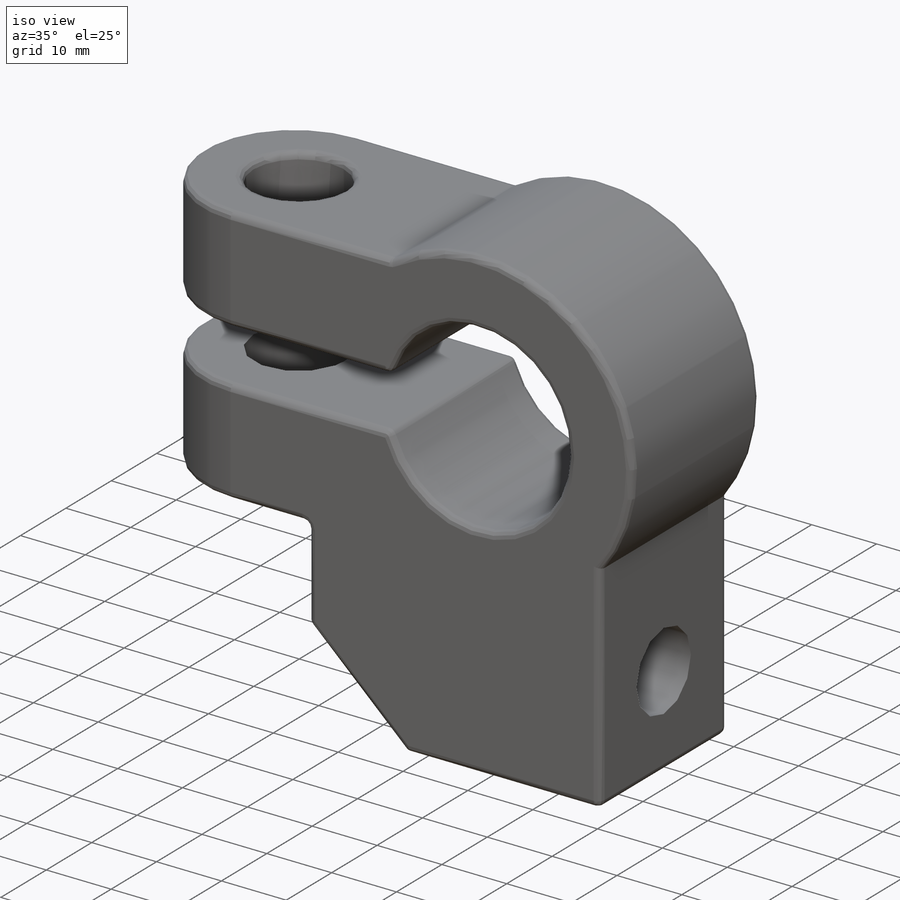
[diagram: iso view]
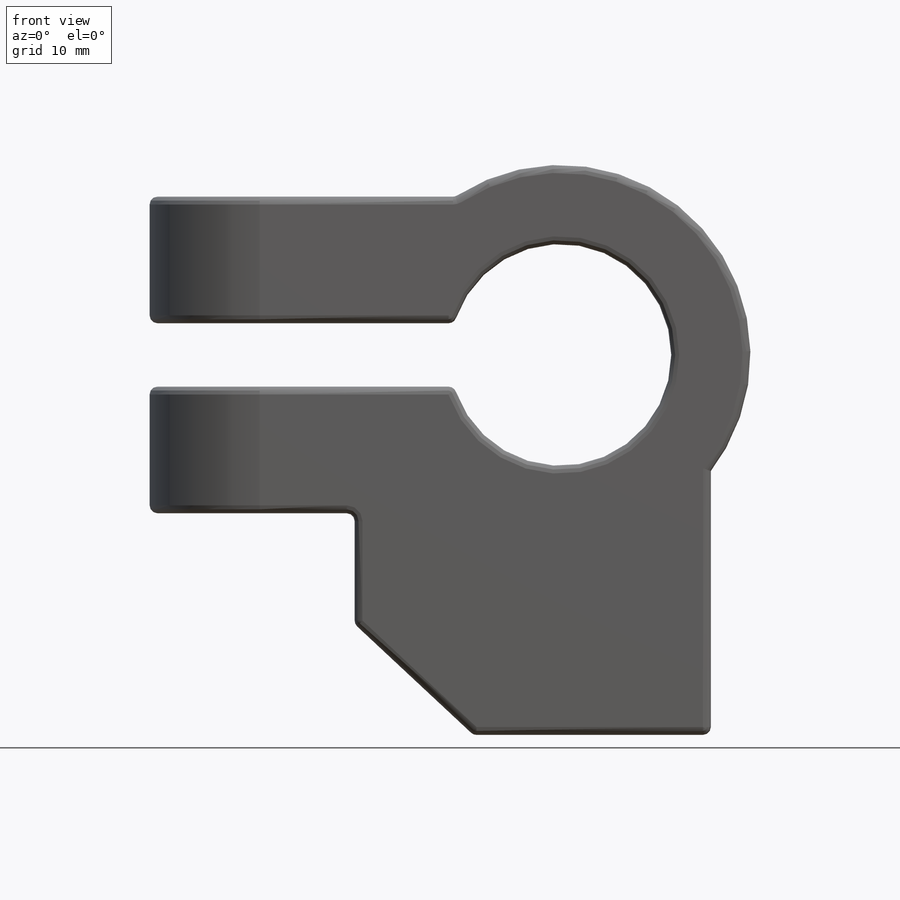
[diagram: front view]
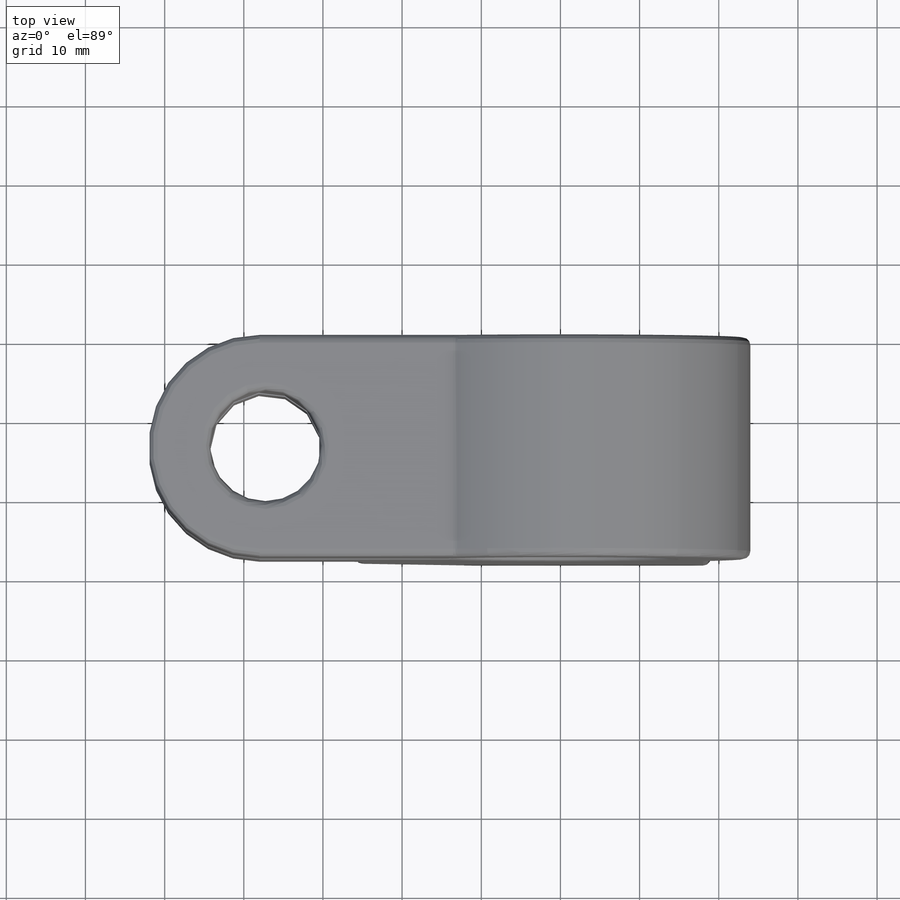
[diagram: top view]
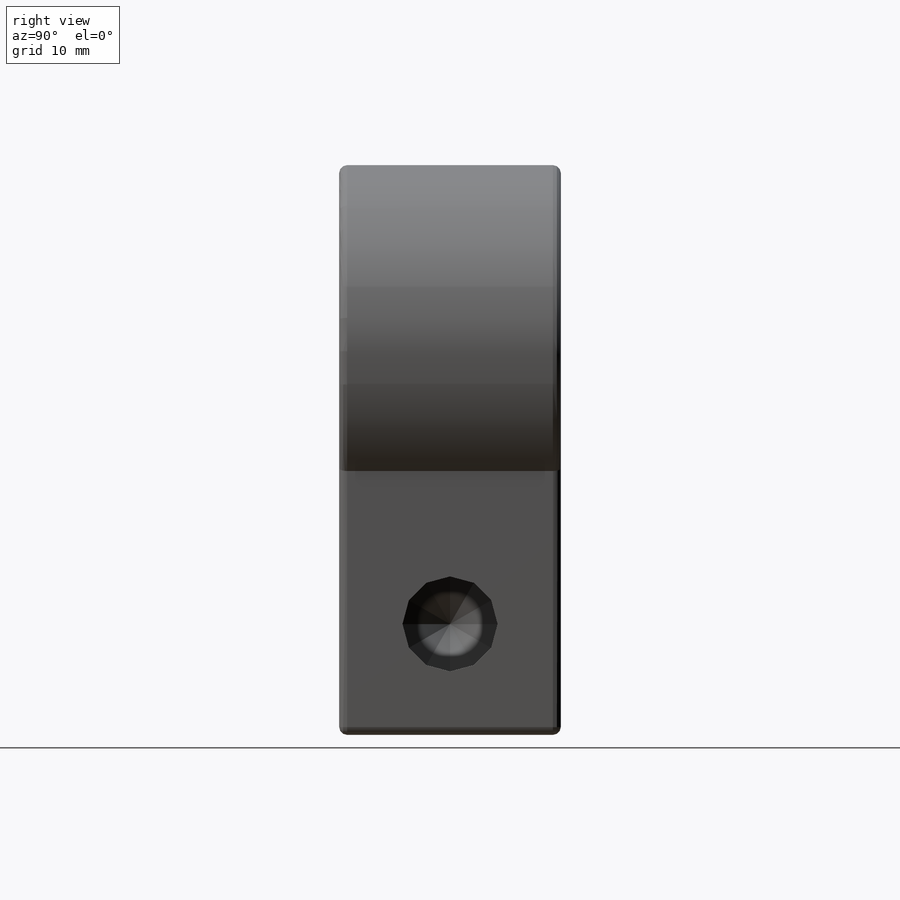
[diagram: right view]
SOLIDWORKS PART (.sldprt)
format: sldprt  version: not decoded by parser v0  size: 359,424 bytes
history: native  units: mm
features: fillet x6, plane x5, sketch x4, cut_extrude x2, material x1, extrude x1, cut_revolve x1 + 1 further entry (+7 scaffold rows collapsed)
feature tree (28):
  scaffold x7  (default folders/planes/origin — collapsed)
  material  "Matériau <non spécifié>"
  "Corps de surface"
  plane  "Face"
  plane  "Dessus"
  plane  "Droite"
  sketch  "Esquisse1"  dims[c1.D1=14.0mm c1.D2=24.0mm c1.D3=16.0mm c1.D4=16.0mm c1.D5=8.0mm c1.D6=45.0mm c1.D7=30.0mm c1.D8=48.0mm c1.D9=14.0mm c2.D3=8.0mm c2.D4=16.0mm c2.D5=16.0mm c2.D10=52.0mm c2.D11=52.0mm c2.D12=~228.020403mm c3.D12=90.0deg c4.D12=26.0mm]
  extrude  "Extrusion1"  Depth=28mm
  sketch  "Esquisse2"  dims[D1=28.0mm]
  cut_extrude  "Enlèv. mat.-Extru.1"  [1 undecoded]
  sketch  "Esquisse3"  dims[c1.D1=14.0mm c1.D2=14.0mm c2.D1=24.0mm]
  cut_extrude  "Enlèv. mat.-Extru.2"  [1 undecoded]
  plane  "Plan1"  Offset=14mm
  sketch  "Esquisse5"  dims[D1=14.0mm D2=25.0mm D3=4.0mm D4=6.0mm]
  cut_revolve  "Enlèvement de matière-Révolution3"  Angle=360deg
  fillet  "Congé1"  Radius=1mm
  fillet  "Congé2"  Radius=1mm
  fillet  "Congé3"  Radius=1mm
  fillet  "Congé4"  Radius=1mm
  fillet  "Congé5"  Radius=1mm
  fillet  "Congé6"  Radius=1mm
  plane  "Plan2"  Offset=40mm
decode coverage: 12 of 14 modeling features carry decoded parameters; 1 rows unclassified (native names shown)
note: ~ marks probable driven/reference dimensions
note: 2 parameter values undecoded
note: suppression state not decoded; provenance and decode notes live in map.json
